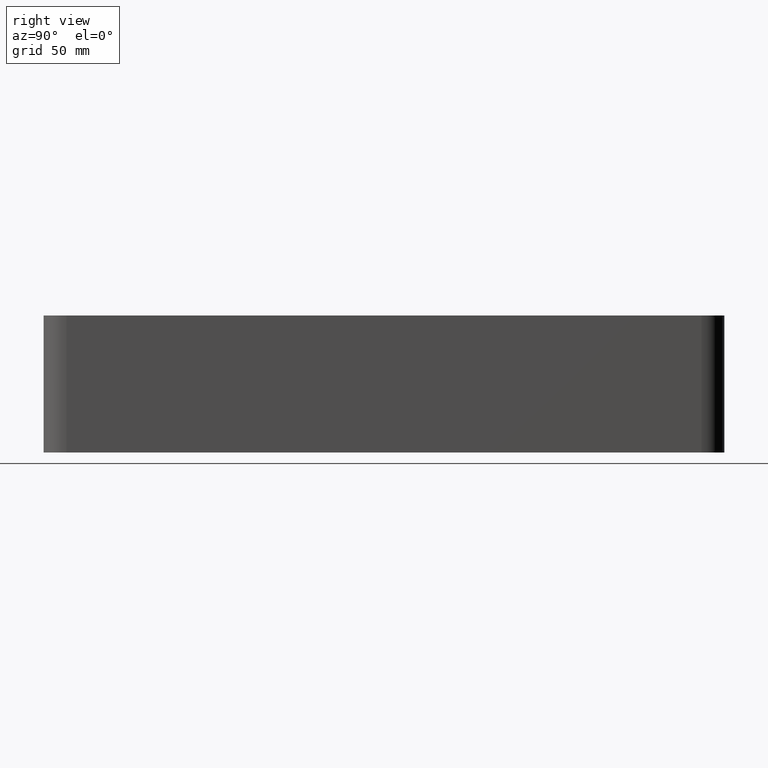
[diagram: clean part render]
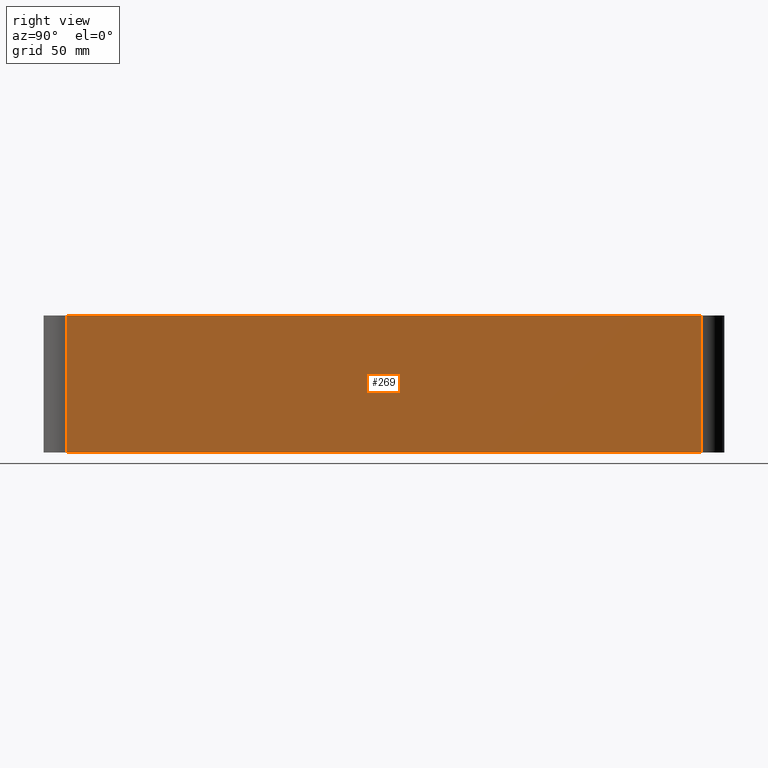
[diagram: same view with one face highlighted and labeled with its STEP entity id]
A machine part, right view. The second image highlights one B-rep face of the part: STEP entity #269.
In plain terms, the highlighted planar face has unit normal (1, 0, 0).
Its self-contained STEP definition (entity closure, byte-faithful):
#41=FACE_OUTER_BOUND('',#56,.T.);
#56=EDGE_LOOP('',(#231,#232,#233,#234));
#72=LINE('',#420,#100);
#76=LINE('',#429,#104);
#85=LINE('',#457,#113);
#86=LINE('',#460,#114);
#100=VECTOR('',#342,10.);
#104=VECTOR('',#350,10.);
#113=VECTOR('',#379,10.);
#114=VECTOR('',#384,10.);
#123=VERTEX_POINT('',#413);
#126=VERTEX_POINT('',#418);
#129=VERTEX_POINT('',#428);
#138=VERTEX_POINT('',#456);
#154=EDGE_CURVE('',#126,#123,#72,.T.);
#158=EDGE_CURVE('',#123,#129,#76,.T.);
#172=EDGE_CURVE('',#129,#138,#85,.T.);
#174=EDGE_CURVE('',#138,#126,#86,.T.);
#231=ORIENTED_EDGE('',*,*,#154,.F.);
#232=ORIENTED_EDGE('',*,*,#174,.F.);
#233=ORIENTED_EDGE('',*,*,#172,.F.);
#234=ORIENTED_EDGE('',*,*,#158,.F.);
#255=PLANE('',#311);
#269=ADVANCED_FACE('',(#41),#255,.T.);
#311=AXIS2_PLACEMENT_3D('',#459,#382,#383);
#342=DIRECTION('',(0.,0.,-1.));
#350=DIRECTION('',(0.,-1.,0.));
#379=DIRECTION('',(0.,0.,1.));
#382=DIRECTION('center_axis',(1.,0.,0.));
#383=DIRECTION('ref_axis',(0.,-1.,0.));
#384=DIRECTION('',(0.,1.,0.));
#413=CARTESIAN_POINT('',(50.2499999999999,139.,-60.));
#418=CARTESIAN_POINT('',(50.2499999999999,139.,0.));
#420=CARTESIAN_POINT('',(50.2499999999999,139.,0.));
#428=CARTESIAN_POINT('',(50.2499999999999,-139.,-60.));
#429=CARTESIAN_POINT('',(50.2499999999999,-149.,-60.));
#456=CARTESIAN_POINT('',(50.2499999999999,-139.,0.));
#457=CARTESIAN_POINT('',(50.2499999999999,-139.,0.));
#459=CARTESIAN_POINT('Origin',(50.2499999999999,149.,0.));
#460=CARTESIAN_POINT('',(50.2499999999999,-149.,0.));